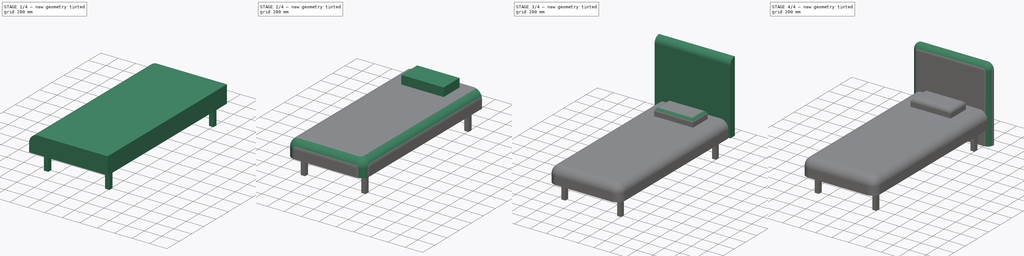
[diagram: build sequence overview — one tinted view per stage of 4, left to right]
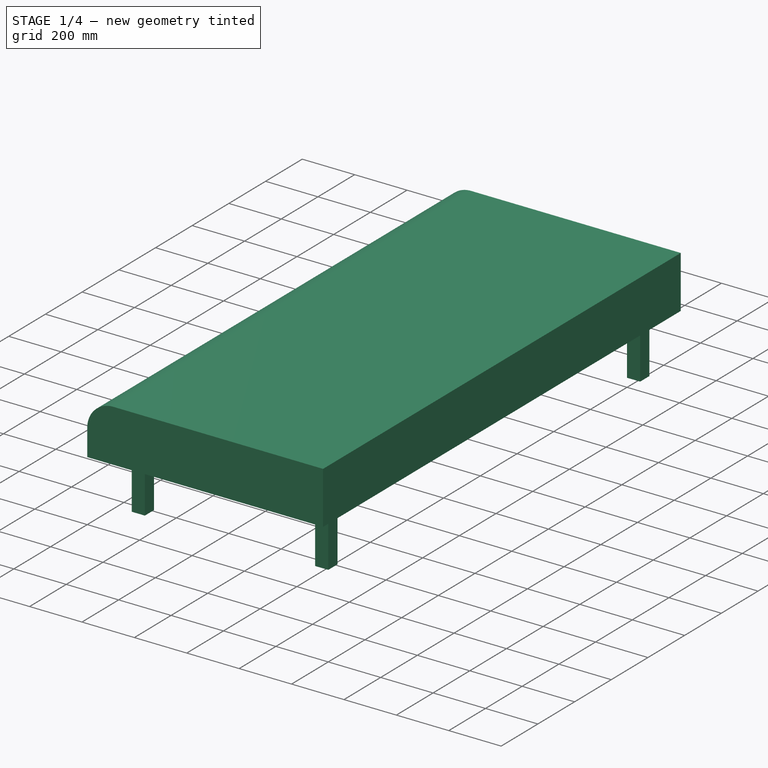
[diagram: stage 1 of 4 — iso view after this stage's code; geometry added in this stage tinted green]
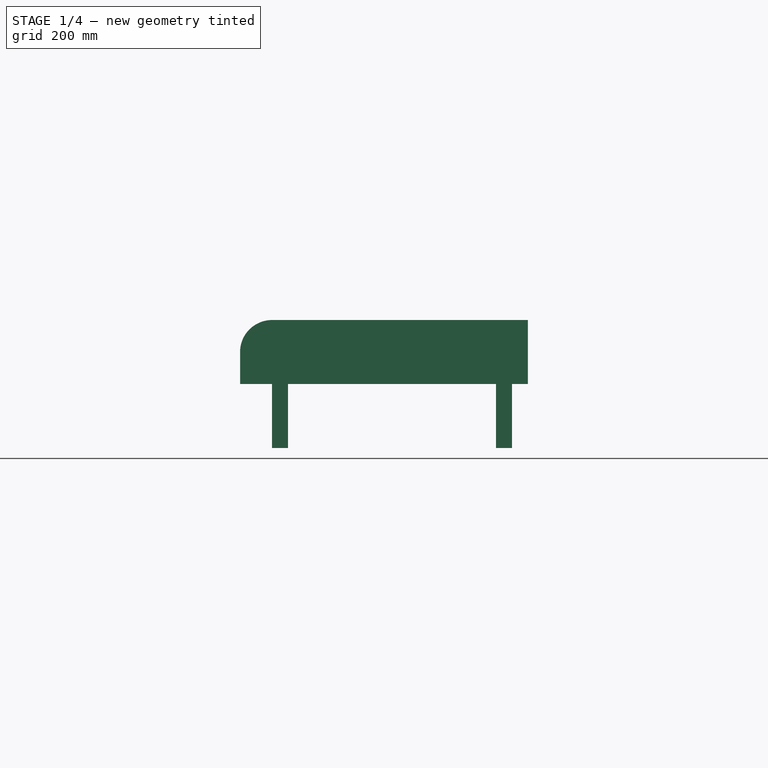
[diagram: stage 1 of 4 — front view after this stage's code; geometry added in this stage tinted green]
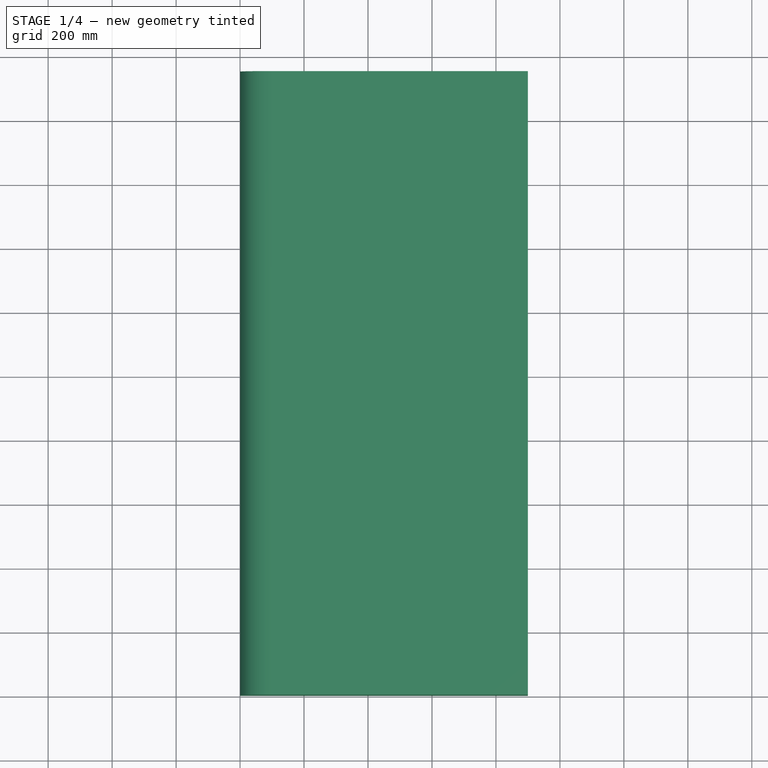
[diagram: stage 1 of 4 — top view after this stage's code; geometry added in this stage tinted green]
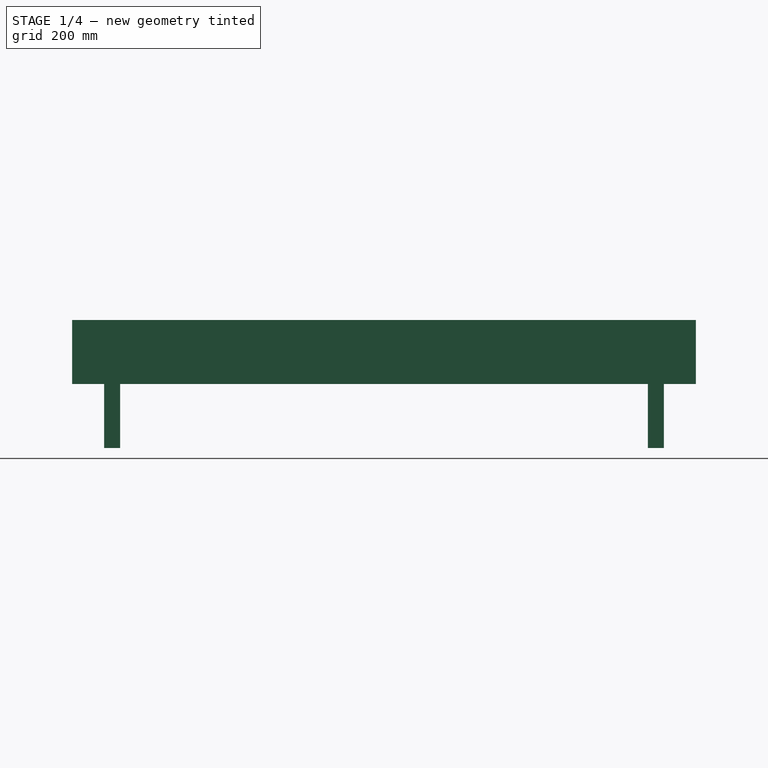
[diagram: stage 1 of 4 — right view after this stage's code; geometry added in this stage tinted green]
FCSTD DOCUMENT  (FreeCAD 0.18R16131 (Git))
Label: SingleBed_900x2000mm
License: All rights reserved
LicenseURL: http://en.wikipedia.org/wiki/All_rights_reserved
objects: PartDesign::Fillet×7, Sketcher::SketchObject×4, PartDesign::Pad×4, PartDesign::Body×2, Part::MultiFuse×1
note: 22 computed .brp shape members not serialized (recipe doc carries the construction recipe); baked Part::Feature solids carry a one-line shape summary decoded from their .brp

FEATURE [Sketcher::SketchObject] Sketch185  label="Sketch186"
  MapMode = 5
  Support = -> [XY_Plane007]
  sketch-geometry (4):
    g0: LineSegment StartX=-32.9455 StartY=2041.16 StartZ=0 EndX=917.055 EndY=2041.16 EndZ=0
    g1: LineSegment StartX=917.055 StartY=2041.16 StartZ=0 EndX=917.055 EndY=1961.16 EndZ=0
    g2: LineSegment StartX=917.055 StartY=1961.16 StartZ=0 EndX=-32.9455 EndY=1961.16 EndZ=0
    g3: LineSegment StartX=-32.9455 StartY=1961.16 StartZ=0 EndX=-32.9455 EndY=2041.16 EndZ=0
  constraints (10):
    c: Coincident(g0,g1)
    c: Coincident(g1,g2)
    c: Coincident(g2,g3)
    c: Coincident(g3,g0)
    c: Horizontal(g0)
    c: Horizontal(g2)
    c: Vertical(g1)
    c: Vertical(g3)
    c: DistanceY(g1,g1) = 80
    c: DistanceX(g2,g2) = 950
FEATURE [Sketcher::SketchObject] Sketch182  label="Sketch183"
  MapMode = 5
  Support = -> [XY_Plane008]
  sketch-geometry (4):
    g0: LineSegment StartX=0 StartY=0 StartZ=0 EndX=900 EndY=0 EndZ=0
    g1: LineSegment StartX=900 StartY=0 StartZ=0 EndX=900 EndY=1950 EndZ=0
    g2: LineSegment StartX=900 StartY=1950 StartZ=0 EndX=0 EndY=1950 EndZ=0
    g3: LineSegment StartX=0 StartY=1950 StartZ=0 EndX=0 EndY=0 EndZ=0
  constraints (11):
    c: Coincident(g0,g1)
    c: Coincident(g1,g2)
    c: Coincident(g2,g3)
    c: Coincident(g3,g0)
    c: Horizontal(g0)
    c: Horizontal(g2)
    c: Vertical(g1)
    c: Vertical(g3)
    c: Coincident(g0,g-1)
    c: DistanceY(g1,g1) = 1950
    c: DistanceX(g0,g0) = 900
FEATURE [Sketcher::SketchObject] Sketch183  label="Sketch184"
  MapMode = 5
  Placement = pos=(0,0,0) rot=(1,0,0;3.14159rad)
  sketch-geometry (16):
    g0: LineSegment StartX=150 StartY=-100 StartZ=0 EndX=100 EndY=-100 EndZ=0
    g1: LineSegment StartX=100 StartY=-100 StartZ=0 EndX=100 EndY=-150 EndZ=0
    g2: LineSegment StartX=100 StartY=-150 StartZ=0 EndX=150 EndY=-150 EndZ=0
    g3: LineSegment StartX=150 StartY=-150 StartZ=0 EndX=150 EndY=-100 EndZ=0
    g4: LineSegment StartX=800 StartY=-100 StartZ=0 EndX=850 EndY=-100 EndZ=0
    g5: LineSegment StartX=850 StartY=-100 StartZ=0 EndX=850 EndY=-150 EndZ=0
    g6: LineSegment StartX=850 StartY=-150 StartZ=0 EndX=800 EndY=-150 EndZ=0
    g7: LineSegment StartX=800 StartY=-150 StartZ=0 EndX=800 EndY=-100 EndZ=0
    g8: LineSegment StartX=100 StartY=-1800 StartZ=0 EndX=150 EndY=-1800 EndZ=0
    g9: LineSegment StartX=150 StartY=-1800 StartZ=0 EndX=150 EndY=-1850 EndZ=0
    g10: LineSegment StartX=150 StartY=-1850 StartZ=0 EndX=100 EndY=-1850 EndZ=0
    g11: LineSegment StartX=100 StartY=-1850 StartZ=0 EndX=100 EndY=-1800 EndZ=0
    g12: LineSegment StartX=800 StartY=-1800 StartZ=0 EndX=850 EndY=-1800 EndZ=0
    g13: LineSegment StartX=850 StartY=-1800 StartZ=0 EndX=850 EndY=-1850 EndZ=0
    g14: LineSegment StartX=850 StartY=-1850 StartZ=0 EndX=800 EndY=-1850 EndZ=0
    g15: LineSegment StartX=800 StartY=-1850 StartZ=0 EndX=800 EndY=-1800 EndZ=0
  constraints (48):
    c: Coincident(g0,g1)
    c: Coincident(g1,g2)
    c: Coincident(g2,g3)
    c: Coincident(g3,g0)
    c: Horizontal(g0)
    c: Horizontal(g2)
    c: Vertical(g1)
    c: Vertical(g3)
    c: DistanceY(g0) = -100
    c: Distance(g2) = 50
    c: DistanceY(g3,g3) = 50
    c: DistanceX(g0) = 100
    c: Coincident(g4,g5)
    c: Coincident(g5,g6)
    c: Coincident(g6,g7)
    c: Coincident(g7,g4)
    c: Horizontal(g4)
    c: Horizontal(g6)
    c: Vertical(g5)
    c: Vertical(g7)
    c: DistanceX(g4,g4) = 50
    c: DistanceY(g7,g7) = 50
    c: DistanceX(g4) = 850
    c: DistanceY(g4) = -100
    c: Coincident(g8,g9)
    c: Coincident(g9,g10)
    c: Coincident(g10,g11)
    c: Coincident(g11,g8)
    c: Horizontal(g8)
    c: Horizontal(g10)
    c: Vertical(g9)
    c: Vertical(g11)
    c: Equal(g4,g8) = 50
    c: Equal(g7,g11) = 50
    c: Coincident(g12,g13)
    c: Coincident(g13,g14)
    c: Coincident(g14,g15)
    c: Coincident(g15,g12)
    c: Horizontal(g12)
    c: Horizontal(g14)
    c: Vertical(g13)
    c: Vertical(g15)
    c: DistanceX(g10) = 100
    c: DistanceY(g10) = -1850
    c: DistanceY(g13,g13) = 50
    c: DistanceX(g14,g14) = 50
    c: DistanceX(g13) = 850
    c: DistanceY(g13) = -1850
FEATURE [PartDesign::Pad] Pad007
  Length = 200
  Length2 = 100
  Profile = -> Sketch182
  Type = 0
FEATURE [PartDesign::Body] Body008  label="Back"
  Group = -> [Sketch185,Pad009,Fillet008,Fillet003,Fillet004]
  Origin = -> Origin008
  Placement = pos=(0,0,-200) rot=(0,0,1;0rad)
  Tip = -> Fillet004
FEATURE [PartDesign::Pad] Pad008
  BaseFeature = -> Pad007
  Length = 200
  Length2 = 100
  Profile = -> Sketch183
  Type = 0
FEATURE [PartDesign::Fillet] Fillet009
  Base = -> Pad008 [Edge7]
  BaseFeature = -> Pad008
  Radius = 100
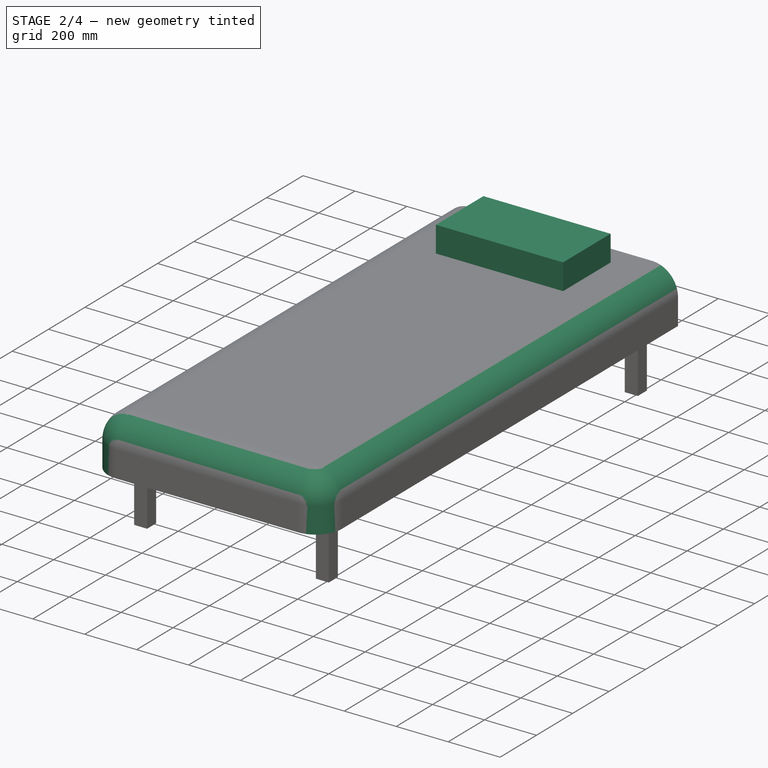
[diagram: stage 2 of 4 — iso view after this stage's code; geometry added in this stage tinted green]
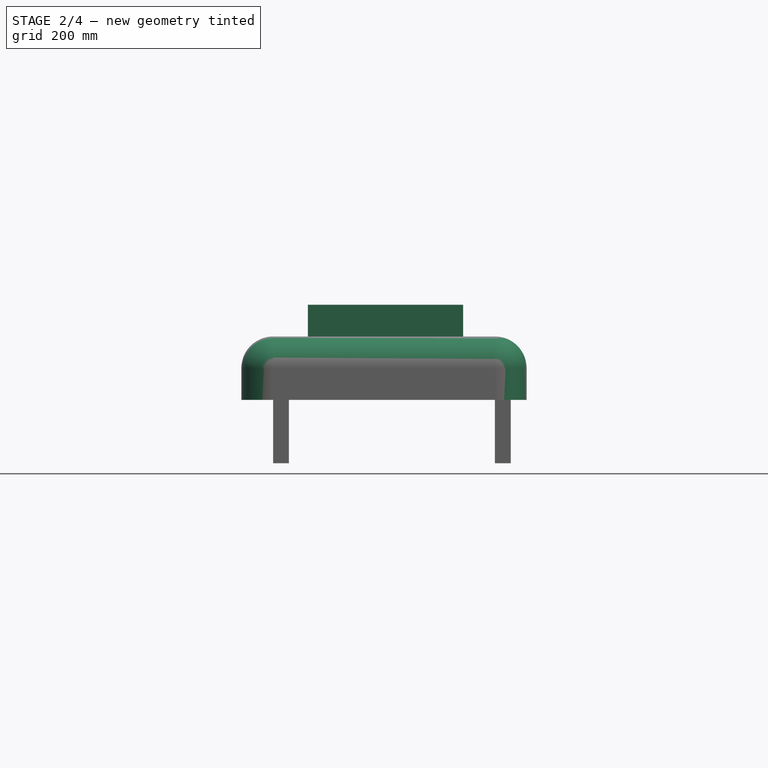
[diagram: stage 2 of 4 — front view after this stage's code; geometry added in this stage tinted green]
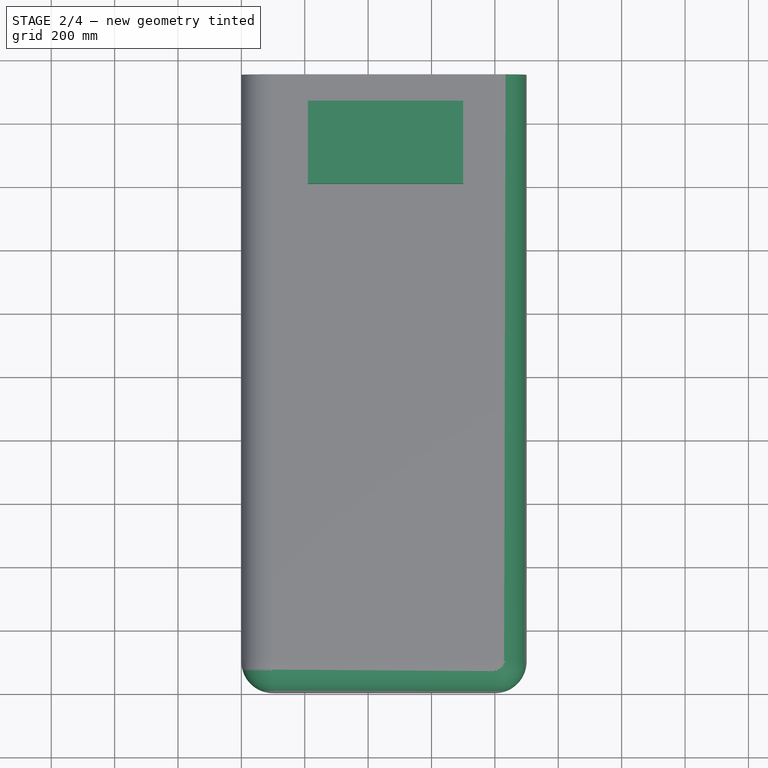
[diagram: stage 2 of 4 — top view after this stage's code; geometry added in this stage tinted green]
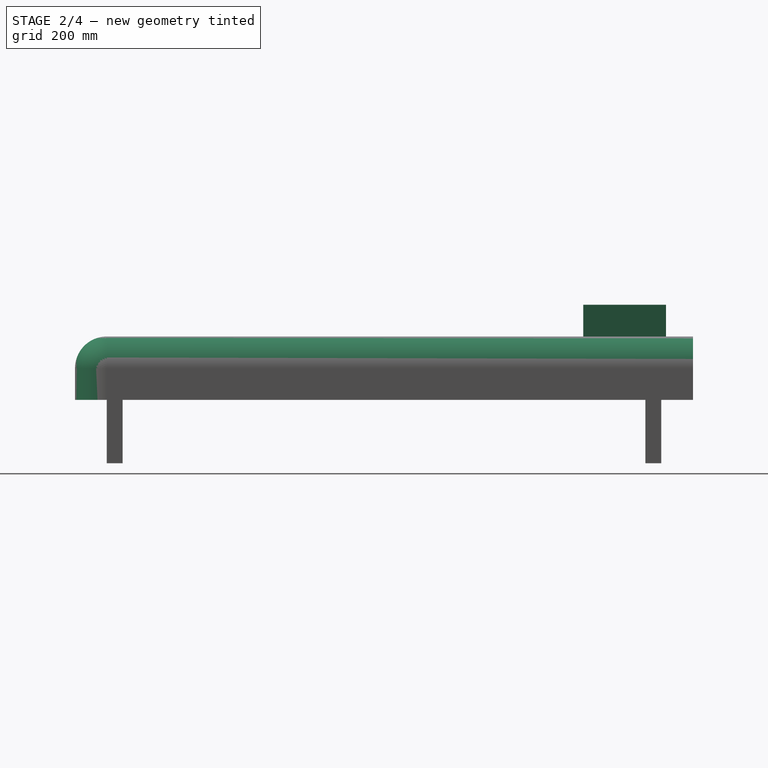
[diagram: stage 2 of 4 — right view after this stage's code; geometry added in this stage tinted green]
FEATURE [PartDesign::Fillet] Fillet005
  Base = -> Fillet009 [Edge29]
  BaseFeature = -> Fillet009
  Radius = 100
FEATURE [PartDesign::Fillet] Fillet006
  Base = -> Fillet005 [Edge1]
  BaseFeature = -> Fillet005
  Radius = 100
FEATURE [Sketcher::SketchObject] Sketch184  label="Sketch185"
  MapMode = 5
  Placement = pos=(0,0,200) rot=(0,0,1;0rad)
  Support = -> [Fillet006]
  sketch-geometry (4):
    g0: LineSegment StartX=209.807 StartY=1864.93 StartZ=0 EndX=699.707 EndY=1864.93 EndZ=0
    g1: LineSegment StartX=699.707 StartY=1864.93 StartZ=0 EndX=699.707 EndY=1603.65 EndZ=0
    g2: LineSegment StartX=699.707 StartY=1603.65 StartZ=0 EndX=209.807 EndY=1603.65 EndZ=0
    g3: LineSegment StartX=209.807 StartY=1603.65 StartZ=0 EndX=209.807 EndY=1864.93 EndZ=0
  constraints (8):
    c: Coincident(g0,g1)
    c: Coincident(g1,g2)
    c: Coincident(g2,g3)
    c: Coincident(g3,g0)
    c: Horizontal(g0)
    c: Horizontal(g2)
    c: Vertical(g1)
    c: Vertical(g3)
FEATURE [PartDesign::Pad] Pad010
  BaseFeature = -> Fillet006
  Length = 100
  Length2 = 100
  Profile = -> Sketch184
  Type = 0
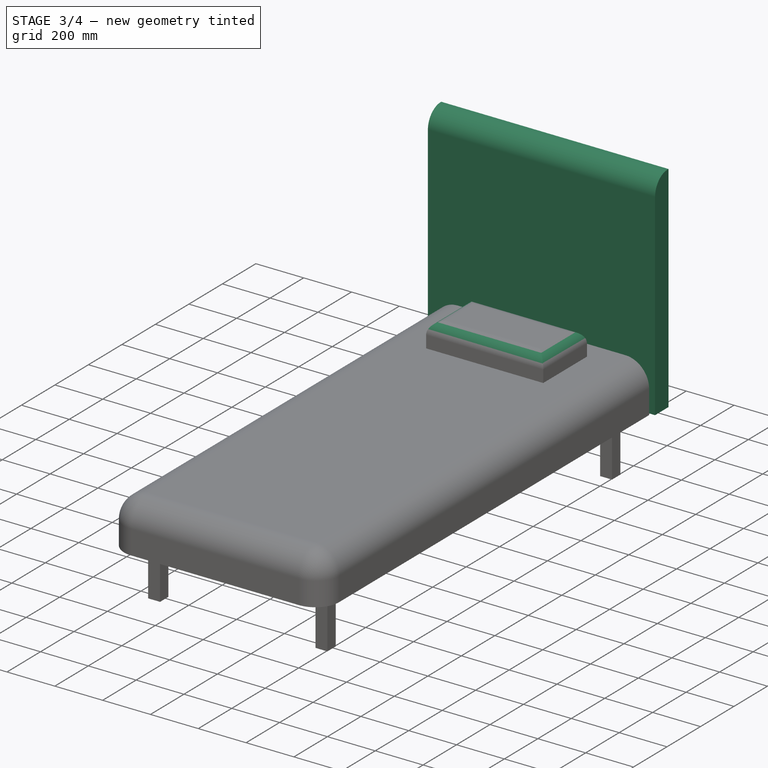
[diagram: stage 3 of 4 — iso view after this stage's code; geometry added in this stage tinted green]
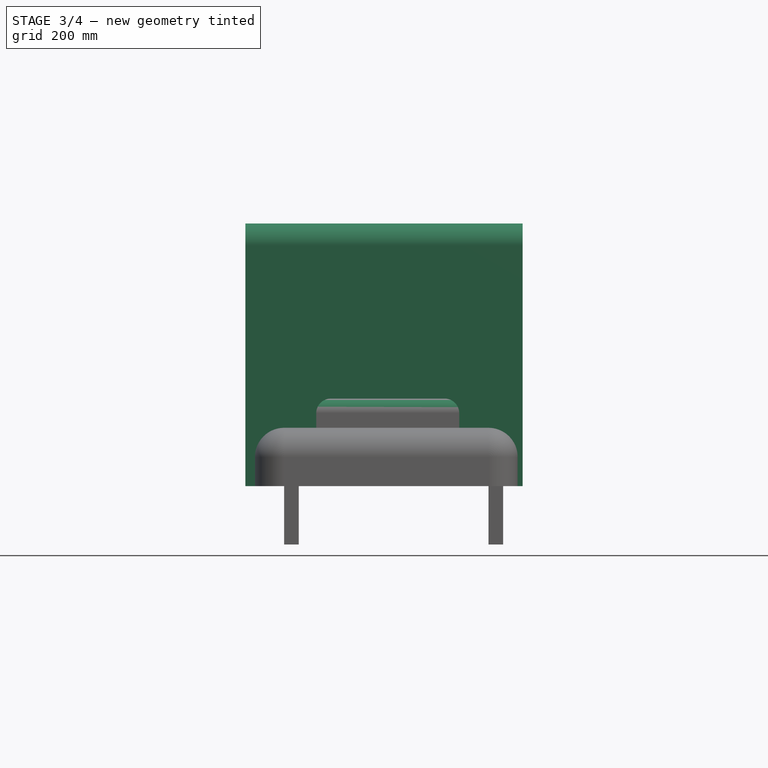
[diagram: stage 3 of 4 — front view after this stage's code; geometry added in this stage tinted green]
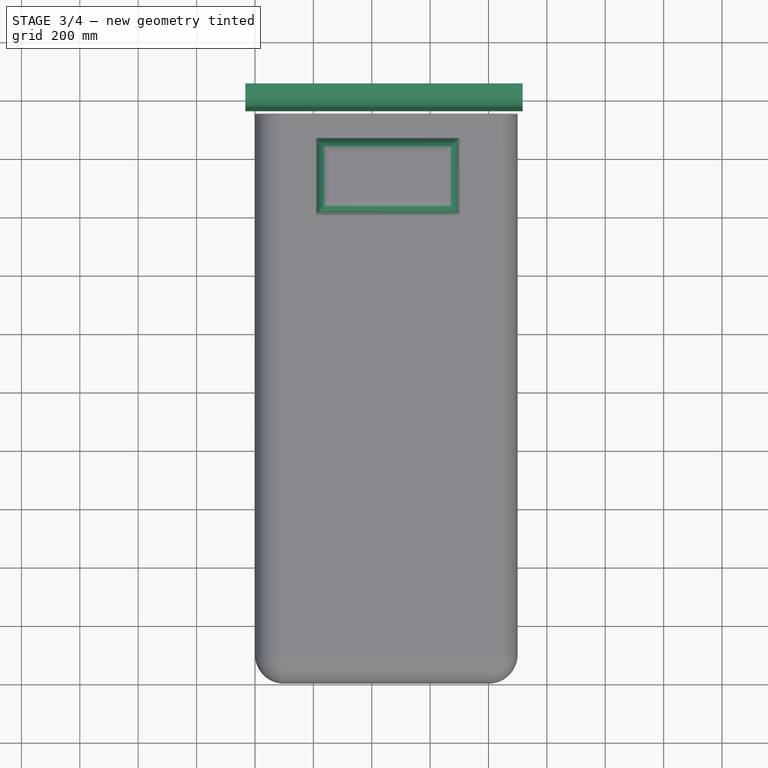
[diagram: stage 3 of 4 — top view after this stage's code; geometry added in this stage tinted green]
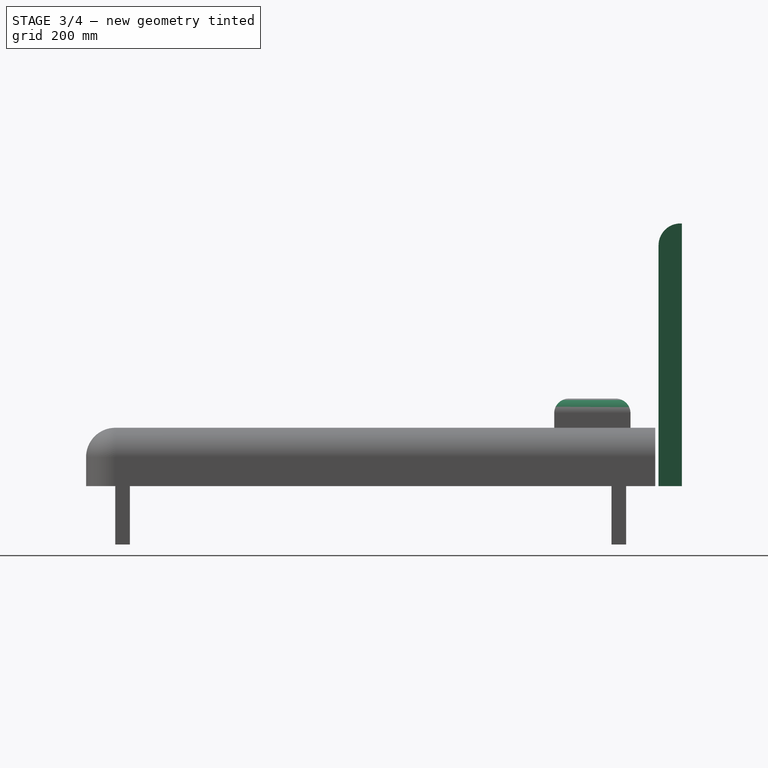
[diagram: stage 3 of 4 — right view after this stage's code; geometry added in this stage tinted green]
FEATURE [PartDesign::Pad] Pad009
  Length = 900
  Length2 = 100
  Profile = -> Sketch185
  Type = 0
FEATURE [PartDesign::Fillet] Fillet008
  Base = -> Pad009 [Edge10]
  BaseFeature = -> Pad009
  Radius = 75
FEATURE [PartDesign::Fillet] Fillet007
  Base = -> Pad010 [Face38]
  BaseFeature = -> Pad010
  Radius = 50
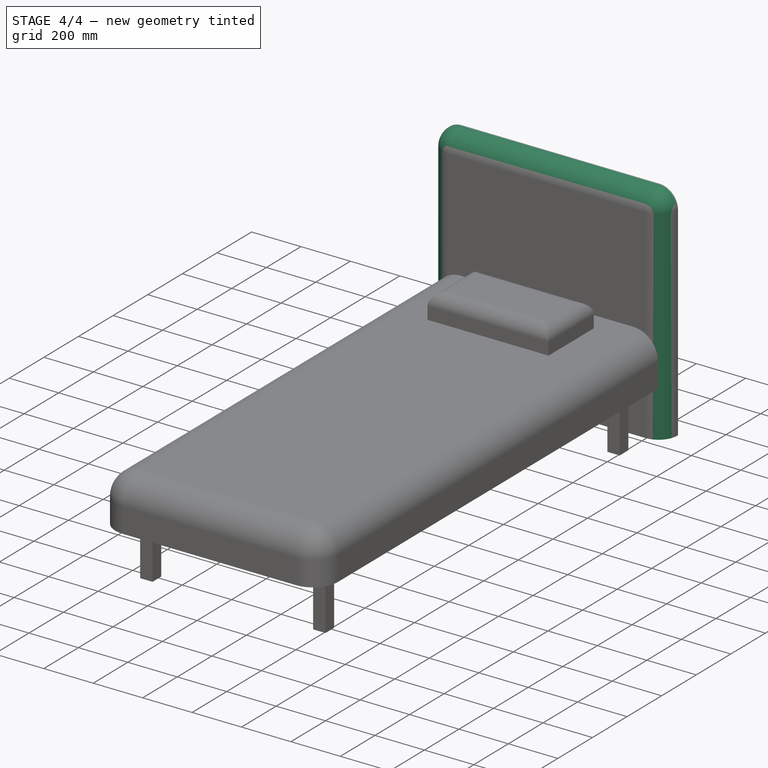
[diagram: stage 4 of 4 — iso view after this stage's code; geometry added in this stage tinted green]
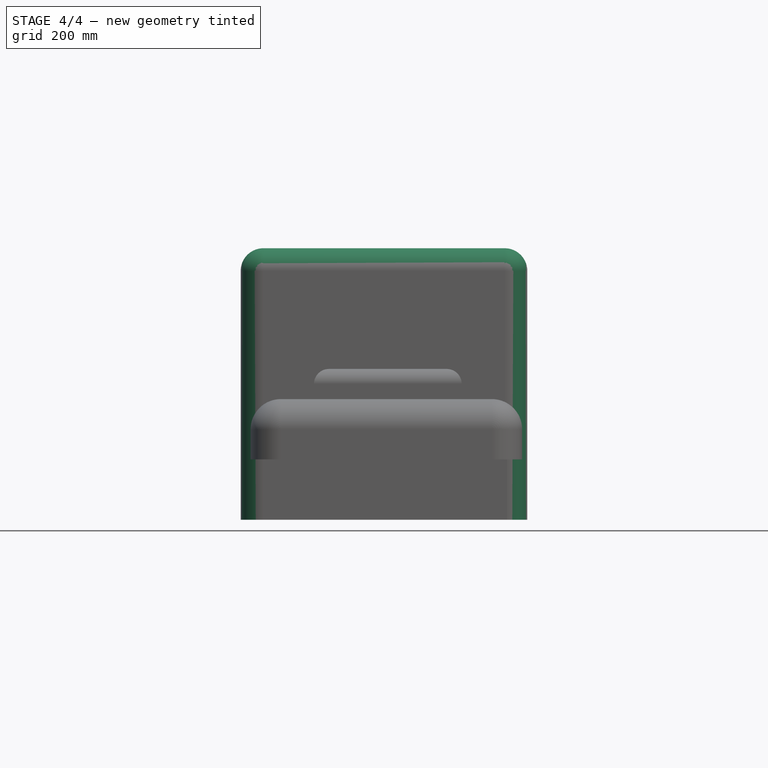
[diagram: stage 4 of 4 — front view after this stage's code; geometry added in this stage tinted green]
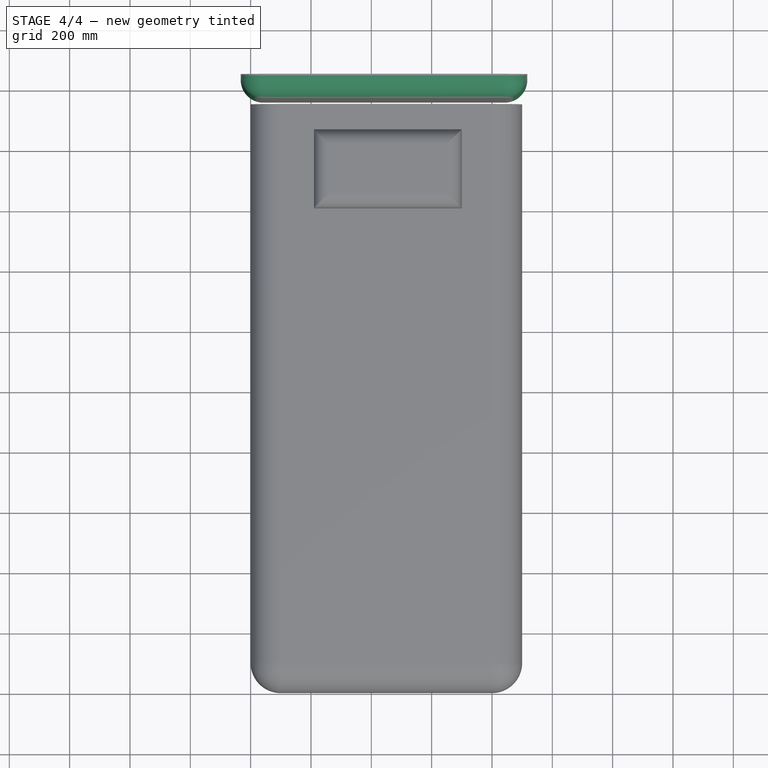
[diagram: stage 4 of 4 — top view after this stage's code; geometry added in this stage tinted green]
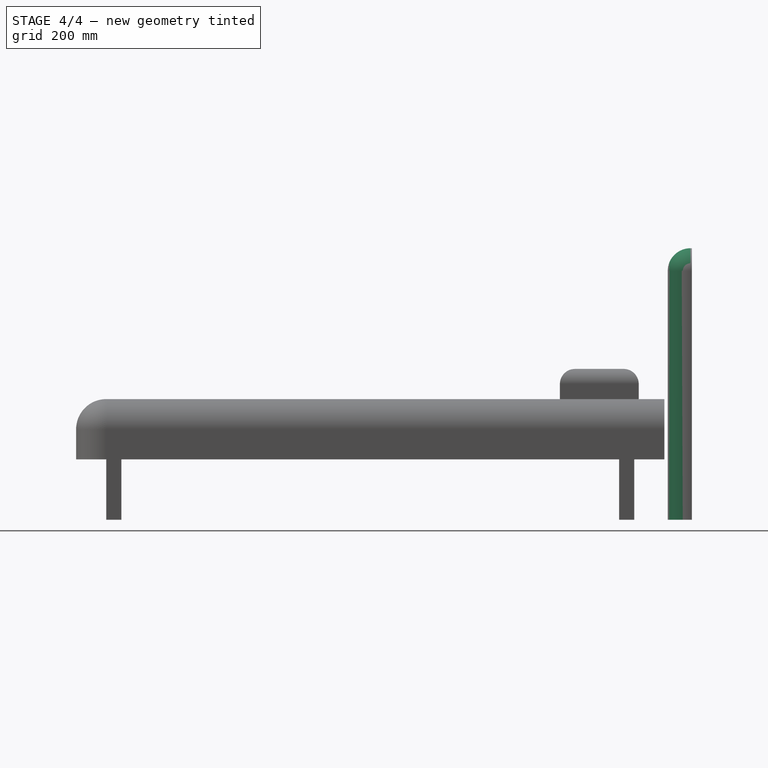
[diagram: stage 4 of 4 — right view after this stage's code; geometry added in this stage tinted green]
FEATURE [PartDesign::Fillet] Fillet003
  Base = -> Fillet008 [Edge8]
  BaseFeature = -> Fillet008
  Radius = 75
FEATURE [PartDesign::Fillet] Fillet004
  Base = -> Fillet003 [Edge3]
  BaseFeature = -> Fillet003
  Radius = 75
FEATURE [PartDesign::Body] Body007  label="Bed"
  Group = -> [Sketch182,Pad007,Sketch183,Pad008,Fillet009,Fillet005,Fillet006,Sketch184,Pad010,Fillet007]
  Origin = -> Origin007
  Tip = -> Fillet007
FEATURE [Part::MultiFuse] Fusion003  label="SingleBed_900x2000mm"
  Shapes = -> [Body007,Body008]
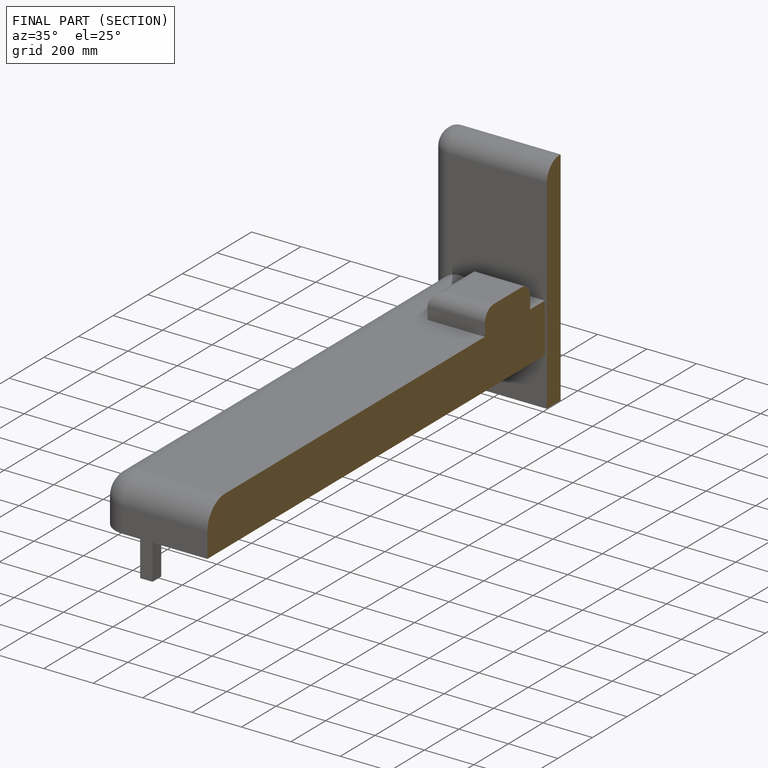
[diagram: finished part — half-section view (interior)]
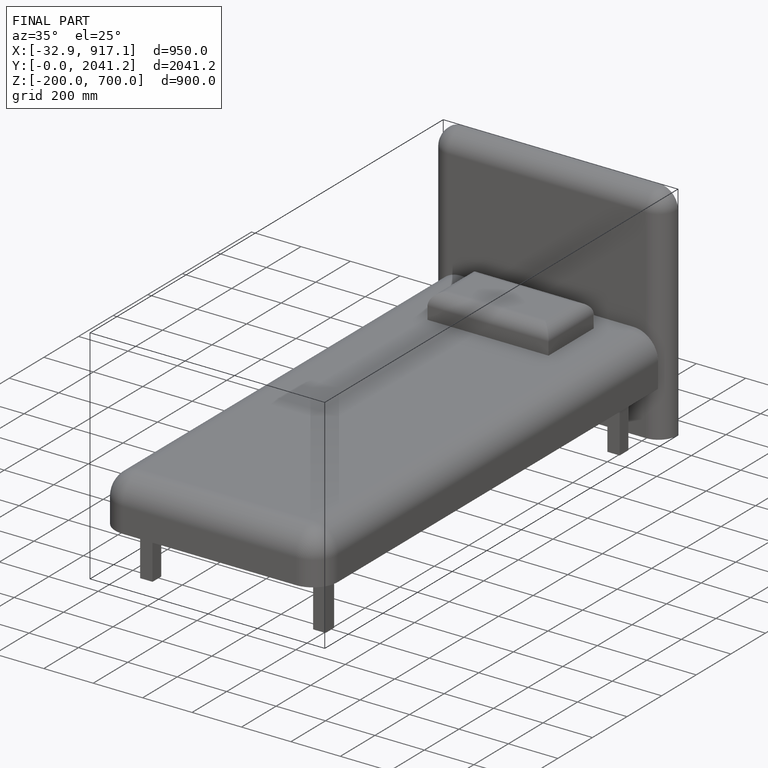
[diagram: finished part — iso view with bounding-box wireframe]
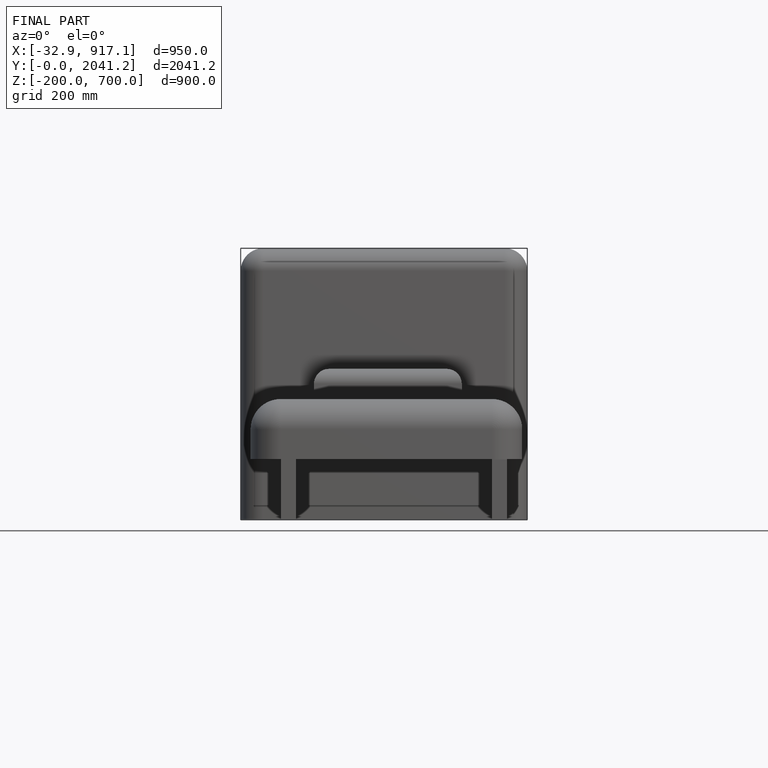
[diagram: finished part — front view with bounding-box wireframe]
